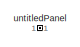
[diagram: root canvas - part 1/4, top left region]
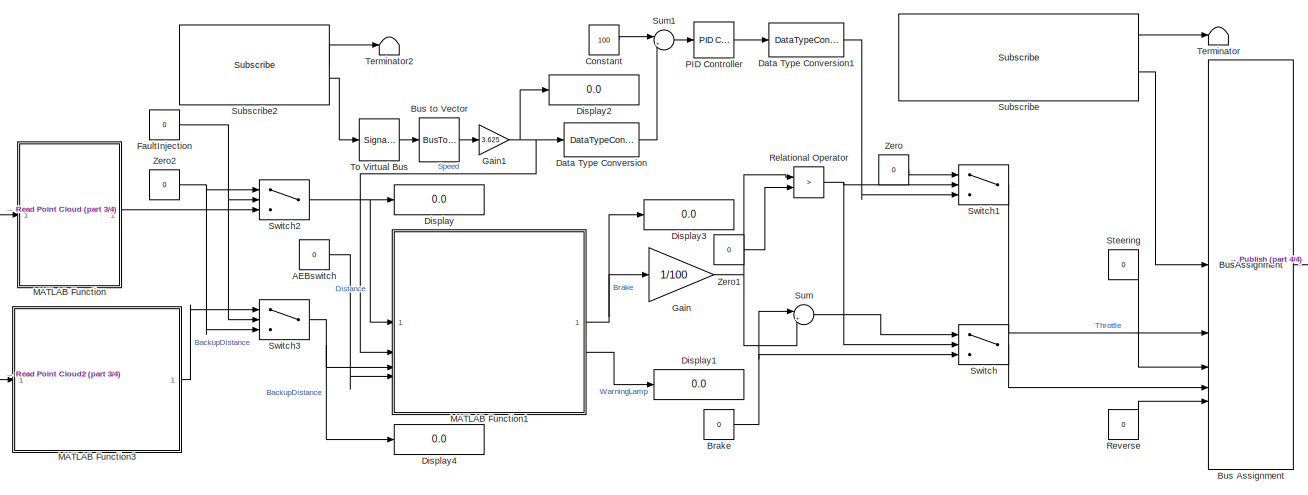
[diagram: root canvas - part 2/4, central region]
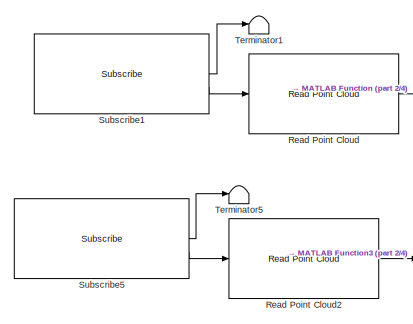
[diagram: root canvas - part 3/4, bottom left region]
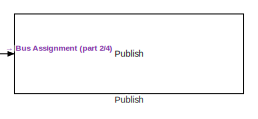
[diagram: root canvas - part 4/4, bottom right region]
MODEL slx_a5d0f405b37b
KIND model
CONFIG AbsTol = auto
CONFIG EnableMultiTasking = off
CONFIG FixedStep = 0.01
CONFIG MaxStep = auto
CONFIG MinStep = auto
CONFIG RelTol = 1e-3
CONFIG SampleTimeConstraint = Unconstrained
CONFIG SolverName = FixedStepAuto
CONFIG StartTime = 0.0
CONFIG StopFcn = % Generate a unique filename based on the current date and time\ntimestamp = datestr(now, 'yyyy-mm-dd_HH-MM-SS');\nfilename = ['simulation_logs_' timestamp '.mat'];\n\n% Check if 'out' variable (SimulationOutput) exists\nif exist('out', 'var')\n    % Extract logsout from the simulation output object\n    logsout = out.logsout;\n    \n    % Save the logsout variable to a .mat file\n    save(filename, 'logsou...<+74ch>
CONFIG StopTime = inf
WORKSPACE source: mxarray member
WORKSPACE SL_ROS_VariableLengthArrays_MaxSizes: object (value not decoded)
BLOCK [Constant] AEBswitch
  OutDataTypeStr = uint8
  Value = 0
BLOCK [Constant] Brake
  OutDataTypeStr = single
  Value = 0
BLOCK [BusAssignment] Bus Assignment
  AssignedSignals = throttle,steer,brake,reverse
BLOCK [BusToVector] Bus to Vector
BLOCK [Constant] Constant
  OutDataTypeStr = double
  Value = 100
BLOCK [DataTypeConversion] Data Type Conversion
  OutDataTypeStr = double
  RndMeth = Round
  SaturateOnIntegerOverflow = off
BLOCK [DataTypeConversion] Data Type Conversion1
  OutDataTypeStr = single
  RndMeth = Floor
BLOCK [Display] Display
  Decimation = 1
BLOCK [Display] Display1
  Decimation = 1
BLOCK [Display] Display2
  Decimation = 1
BLOCK [Display] Display3
  Decimation = 1
BLOCK [Display] Display4
  Decimation = 1
BLOCK [Constant] FaultInjection
  Value = 0
BLOCK [Gain] Gain
  Gain = 1/100
  OutDataTypeStr = single
  RndMeth = Simplest
BLOCK [Gain] Gain1
  Gain = 3.625
  OutDataTypeStr = uint8
  RndMeth = Round
  SaturateOnIntegerOverflow = on
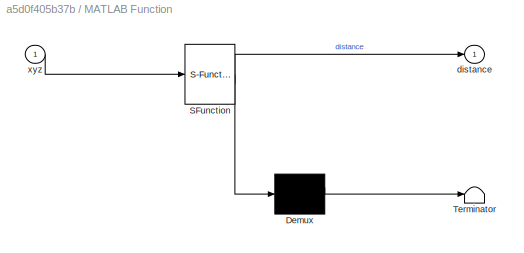
BLOCK [SubSystem] MATLAB Function
  ErrorFcn = Stateflow.Translate.translate
  PermitHierarchicalResolution = ExplicitOnly
  SFBlockType = MATLAB Function
  SystemSampleTime = 0.01
  TreatAsAtomicUnit = on
BLOCK [Demux] MATLAB Function/ Demux 
  Outputs = 1
BLOCK [S-Function] MATLAB Function/ SFunction 
  EnableBusSupport = on
  FunctionName = sf_sfun
  PortCounts = [1 2]
  SFcnIsStateOwnerBlock = off
  SFunctionDeploymentMode = off
  Tag = Stateflow S-Function 2
BLOCK [Terminator] MATLAB Function/ Terminator 
BLOCK [Outport] MATLAB Function/distance
BLOCK [Inport] MATLAB Function/xyz
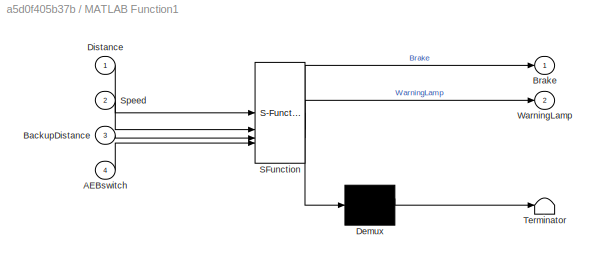
BLOCK [SubSystem] MATLAB Function1
  ErrorFcn = Stateflow.Translate.translate
  PermitHierarchicalResolution = ExplicitOnly
  SFBlockType = MATLAB Function
  SystemSampleTime = 0.01
  TreatAsAtomicUnit = on
BLOCK [Demux] MATLAB Function1/ Demux 
  Outputs = 1
BLOCK [S-Function] MATLAB Function1/ SFunction 
  EnableBusSupport = on
  FunctionName = sf_sfun
  PortCounts = [4 3]
  SFcnIsStateOwnerBlock = off
  SFunctionDeploymentMode = off
  Tag = Stateflow S-Function 1
BLOCK [Terminator] MATLAB Function1/ Terminator 
BLOCK [Inport] MATLAB Function1/AEBswitch
  Port = 4
BLOCK [Inport] MATLAB Function1/BackupDistance
  Port = 3
BLOCK [Outport] MATLAB Function1/Brake
BLOCK [Inport] MATLAB Function1/Distance
BLOCK [Inport] MATLAB Function1/Speed
  Port = 2
BLOCK [Outport] MATLAB Function1/WarningLamp
  Port = 2
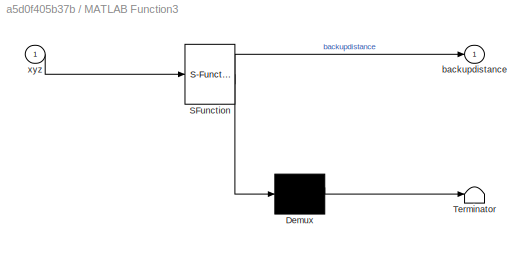
BLOCK [SubSystem] MATLAB Function3
  ErrorFcn = Stateflow.Translate.translate
  PermitHierarchicalResolution = ExplicitOnly
  SFBlockType = MATLAB Function
  SystemSampleTime = 0.01
  TreatAsAtomicUnit = on
BLOCK [Demux] MATLAB Function3/ Demux 
  Outputs = 1
BLOCK [S-Function] MATLAB Function3/ SFunction 
  EnableBusSupport = on
  FunctionName = sf_sfun
  PortCounts = [1 2]
  SFcnIsStateOwnerBlock = off
  SFunctionDeploymentMode = off
  Tag = Stateflow S-Function 4
BLOCK [Terminator] MATLAB Function3/ Terminator 
BLOCK [Outport] MATLAB Function3/backupdistance
BLOCK [Inport] MATLAB Function3/xyz
BLOCK [Reference] PID Controller  REF=slpidlib/PID Controller
  LibrarySourceBlock = simulink/Continuous/PID Controller
  SourceBlock = slpidlib/PID Controller
  SourceType = PID 1dof
BLOCK [Reference] Publish  REF=ros2lib/Publish  (lib defined in slx_3c1549211f48)
  SourceBlock = ros2lib/Publish
  SourceType = ROS2 Publish
BLOCK [Reference] Read Point Cloud  REF=ros2lib/Read Point Cloud  (lib defined in slx_3c1549211f48)
  SourceBlock = ros2lib/Read Point Cloud
  SourceType = ros.slros2.internal.block.ReadPointCloud
BLOCK [Reference] Read Point Cloud2  REF=ros2lib/Read Point Cloud  (lib defined in slx_3c1549211f48)
  SourceBlock = ros2lib/Read Point Cloud
  SourceType = ros.slros2.internal.block.ReadPointCloud
BLOCK [RelationalOperator] Relational Operator
  InputSameDT = off
  Operator = >
  OutDataTypeStr = boolean
  RndMeth = Simplest
BLOCK [Constant] Reverse
  OutDataTypeStr = boolean
  Value = 0
BLOCK [Constant] Steering
  OutDataTypeStr = single
  Value = 0
BLOCK [Reference] Subscribe  REF=ros2lib/Subscribe  (lib defined in slx_3c1549211f48)
  SourceBlock = ros2lib/Subscribe
  SourceType = ROS2 Subscribe
BLOCK [Reference] Subscribe1  REF=ros2lib/Subscribe  (lib defined in slx_3c1549211f48)
  SourceBlock = ros2lib/Subscribe
  SourceType = ROS2 Subscribe
BLOCK [Reference] Subscribe2  REF=ros2lib/Subscribe  (lib defined in slx_3c1549211f48)
  SourceBlock = ros2lib/Subscribe
  SourceType = ROS2 Subscribe
BLOCK [Reference] Subscribe5  REF=ros2lib/Subscribe  (lib defined in slx_3c1549211f48)
  SourceBlock = ros2lib/Subscribe
  SourceType = ROS2 Subscribe
BLOCK [Sum] Sum
  Inputs = |++
BLOCK [Sum] Sum1
  Inputs = |+-
BLOCK [Switch] Switch
  Criteria = u2 > Threshold
  InputSameDT = off
  SaturateOnIntegerOverflow = off
BLOCK [Switch] Switch1
  Criteria = u2 > Threshold
  InputSameDT = off
  SaturateOnIntegerOverflow = off
BLOCK [Switch] Switch2
  Criteria = u2 > Threshold
  InputSameDT = off
  SaturateOnIntegerOverflow = off
BLOCK [Switch] Switch3
  Criteria = u2 > Threshold
  InputSameDT = off
  SaturateOnIntegerOverflow = off
BLOCK [Terminator] Terminator
BLOCK [Terminator] Terminator1
BLOCK [Terminator] Terminator2
BLOCK [Terminator] Terminator5
BLOCK [SignalConversion] To Virtual Bus
  ConversionOutput = Virtual bus
  OverrideOpt = off
BLOCK [Constant] Zero
  OutDataTypeStr = Inherit: Inherit via back propagation
  Value = 0
BLOCK [Constant] Zero1
  OutDataTypeStr = Inherit: Inherit via back propagation
  Value = 0
BLOCK [Constant] Zero2
  OutDataTypeStr = Inherit: Inherit via back propagation
  Value = 0
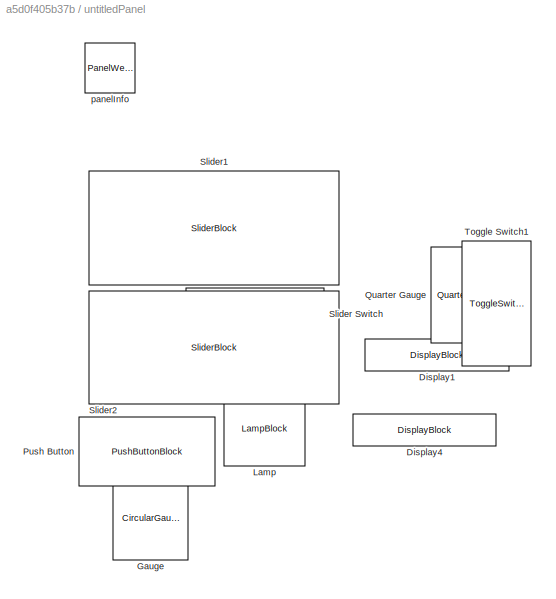
BLOCK [SubSystem] untitledPanel
  IsWebBlockPanel = on
  Tag = HiddenForWebPanel
BLOCK [DisplayBlock] untitledPanel/Display1
  PanelInfo = {"addnFilesFolder":"","height":59,"includeDebugPackages":false,"left":281,"outputFolder":"","panelId":"panelId-4ec24f18-4b2b-4da9-8655-6245c59e87f1","popoutMode":"","standaloneTitle":"","top":316,"type":"panelChild","version":"2019b","width":174,"zIndex":1500038}
  Tag = HiddenForWebPanel
  Transparency = 1
BLOCK [DisplayBlock] untitledPanel/Display4
  PanelInfo = {"addnFilesFolder":"","height":60,"includeDebugPackages":false,"left":283,"outputFolder":"","panelId":"panelId-4ec24f18-4b2b-4da9-8655-6245c59e87f1","popoutMode":"","standaloneTitle":"","top":386,"type":"panelChild","version":"2019b","width":169,"zIndex":1500040}
  Tag = HiddenForWebPanel
  Transparency = 1
BLOCK [CircularGaugeBlock] untitledPanel/Gauge
  PanelInfo = {"addnFilesFolder":"","height":153,"includeDebugPackages":false,"left":274,"outputFolder":"","panelId":"panelId-4ec24f18-4b2b-4da9-8655-6245c59e87f1","popoutMode":"","standaloneTitle":"","top":23,"type":"panelChild","version":"2019b","width":194,"zIndex":1500022}
  Tag = HiddenForWebPanel
  TickInterval = 10
BLOCK [LampBlock] untitledPanel/Lamp
  PanelInfo = {"addnFilesFolder":"","height":65,"includeDebugPackages":false,"left":178,"outputFolder":"","panelId":"panelId-4ec24f18-4b2b-4da9-8655-6245c59e87f1","popoutMode":"","standaloneTitle":"","top":365,"type":"panelChild","version":"2019b","width":96,"zIndex":1500042}
  Tag = HiddenForWebPanel
BLOCK [PushButtonBlock] untitledPanel/Push Button
  ButtonText = SensorFailure
  ButtonType = Latch
  Icon = CheckEngine2
  IconColor = On
  LabelPosition = Top
  OffValue = 0.000000
  PanelInfo = {"addnFilesFolder":"","height":87,"includeDebugPackages":false,"left":19,"outputFolder":"","panelId":"panelId-4ec24f18-4b2b-4da9-8655-6245c59e87f1","popoutMode":"","standaloneTitle":"","top":361,"type":"panelChild","version":"2019b","width":151,"zIndex":1500044}
  Tag = HiddenForWebPanel
BLOCK [QuarterGaugeBlock] untitledPanel/Quarter Gauge
  PanelInfo = {"addnFilesFolder":"","height":121,"includeDebugPackages":false,"left":283,"outputFolder":"","panelId":"panelId-4ec24f18-4b2b-4da9-8655-6245c59e87f1","popoutMode":"","standaloneTitle":"","top":183,"type":"panelChild","version":"2019b","width":168,"zIndex":1500024}
  Tag = HiddenForWebPanel
  TickInterval = 25
BLOCK [SliderSwitchBlock] untitledPanel/Slider Switch
  PanelInfo = {"addnFilesFolder":"","height":54,"includeDebugPackages":false,"left":105,"outputFolder":"","panelId":"panelId-4ec24f18-4b2b-4da9-8655-6245c59e87f1","popoutMode":"","standaloneTitle":"","top":268,"type":"panelChild","version":"2019b","width":146,"zIndex":1500036}
  Tag = HiddenForWebPanel
BLOCK [SliderBlock] untitledPanel/Slider1
  PanelInfo = {"addnFilesFolder":"","height":114,"includeDebugPackages":false,"left":15,"outputFolder":"","panelId":"panelId-4ec24f18-4b2b-4da9-8655-6245c59e87f1","popoutMode":"","standaloneTitle":"","top":18,"type":"panelChild","version":"2019b","width":250,"zIndex":1500018}
  ScaleMax = 1
  ScaleMin = -1
  Tag = HiddenForWebPanel
  TickInterval = 1
BLOCK [SliderBlock] untitledPanel/Slider2
  PanelInfo = {"addnFilesFolder":"","height":113,"includeDebugPackages":false,"left":15,"outputFolder":"","panelId":"panelId-4ec24f18-4b2b-4da9-8655-6245c59e87f1","popoutMode":"","standaloneTitle":"","top":138,"type":"panelChild","version":"2019b","width":250,"zIndex":1500010}
  ScaleMax = 1
  Tag = HiddenForWebPanel
  TickInterval = 0.5
BLOCK [ToggleSwitchBlock] untitledPanel/Toggle Switch1
  PanelInfo = {"addnFilesFolder":"","height":96,"includeDebugPackages":false,"left":19,"outputFolder":"","panelId":"panelId-4ec24f18-4b2b-4da9-8655-6245c59e87f1","popoutMode":"","standaloneTitle":"","top":258,"type":"panelChild","version":"2019b","width":50,"zIndex":1500008}
  Tag = HiddenForWebPanel
BLOCK [PanelWebBlock] untitledPanel/panelInfo
  PanelInfo = {"addnFilesFolder":"","compacted":false,"height":465,"includeDebugPackages":false,"isActiveTab":true,"left":17,"name":"Panel","outputFolder":"","panelId":"panelId-4ec24f18-4b2b-4da9-8655-6245c59e87f1","popoutMode":"","standaloneTitle":"","tabIndex":0,"tabbedSetId":"tabbedSet3834338684","top":33,"type":"panel","version":"2019b","visible":true,"width":474,"zIndex":1500002}
  Tag = HiddenForWebPanel
LINE AEBswitch:1 -> MATLAB Function1:4
NET Brake:1 -> Sum:1, Switch:3
LINE Bus Assignment:1 -> Publish:1
LINE Bus to Vector:1 -> Gain1:1
LINE Constant:1 -> Sum1:1
LINE Data Type Conversion1:1 -> Switch1:3
LINE Data Type Conversion:1 -> Sum1:2
NET FaultInjection:1 -> Switch2:2, Switch3:2
NET Gain1:1 -> Data Type Conversion:1, Display2:1, MATLAB Function1:2
NET Gain:1 -> Relational Operator:1, Sum:2
NET MATLAB Function1:1 -> Display3:1, Gain:1
LINE MATLAB Function1:2 -> Display1:1
LINE MATLAB Function3:1 -> Switch3:1
LINE MATLAB Function:1 -> Switch2:3
LINE PID Controller:1 -> Data Type Conversion1:1
LINE Read Point Cloud2:1 -> MATLAB Function3:1
LINE Read Point Cloud:1 -> MATLAB Function:1
NET Relational Operator:1 -> Switch1:2, Switch:2
LINE Reverse:1 -> Bus Assignment:5
LINE Steering:1 -> Bus Assignment:3
LINE Subscribe1:1 -> Terminator1:1
LINE Subscribe1:2 -> Read Point Cloud:1
LINE Subscribe2:1 -> Terminator2:1
LINE Subscribe2:2 -> To Virtual Bus:1
LINE Subscribe5:1 -> Terminator5:1
LINE Subscribe5:2 -> Read Point Cloud2:1
LINE Subscribe:1 -> Terminator:1
LINE Subscribe:2 -> Bus Assignment:1
LINE Sum1:1 -> PID Controller:1
LINE Sum:1 -> Switch:1
LINE Switch1:1 -> Bus Assignment:2
NET Switch2:1 -> Display:1, MATLAB Function1:1
NET Switch3:1 -> Display4:1, MATLAB Function1:3
LINE Switch:1 -> Bus Assignment:4
LINE To Virtual Bus:1 -> Bus to Vector:1
LINE Zero1:1 -> Relational Operator:2
NET Zero2:1 -> Switch2:1, Switch3:3
LINE Zero:1 -> Switch1:1
note: NET lines group one-source signal fan-out (src -> all destinations, sorted); 1:1 wires keep LINE
CHART MATLAB Function1 states=1 transitions=1
  STATE_LABEL 'eML_blk_kernel()'
  STATE_LABEL 'SCRIPT:\nfunction [Brake, WarningLamp] = emergencyBrakingLogic(Distance, Speed, BackupDistance, AEBswitch)\n% EMERGENCYBRAKINGLOGIC Calculate brake intensity based on filtered distance\n% Distance: Smoothed distance data (single)\n% Speed: Vehicle speed in kmph (uint8)\n% BackupDistance: Backup distance input in case primary fails (uint8)\n% AEBswitch: Automatic Emergency Braking switch (1 for ON, 0 for...<+3175ch>'
CHART MATLAB Function states=1 transitions=1
  STATE_LABEL 'eML_blk_kernel()'
  STATE_LABEL 'SCRIPT:\nfunction distance = calculate_distance(xyz)\n% CALCULATE_distance Calculate the minimum distance of objects in front of the vehicle\n% xyz: Radar point cloud data [N x 3] where each row is (x, y, z)\n% distance: minimum distance to an object in front of the vehicle in meters (single)\n\n% Define parameters\nvehicle_width = single(2); % Vehicle width (meters)\n\n% Initialize persistent variable to ...<+1362ch>'
CHART MATLAB Function3 states=1 transitions=1
  STATE_LABEL 'eML_blk_kernel()'
  STATE_LABEL 'SCRIPT:\nfunction backupdistance = calculate_backupdistance(xyz)\n% CALCULATE_backupdistance Calculate the minimum backupdistance of objects in front of the vehicle\n% xyz: Radar point cloud data [N x 3] where each row is (x, y, z)\n% backupdistance: minimum backupdistance to an object in front of the vehicle in meters (single)\n\n% Define parameters\nvehicle_width = single(2); % Vehicle width (meters)\n\n...<+1530ch>'
CHART  states=0 transitions=0
CHART  states=0 transitions=0
CHART  states=0 transitions=0
